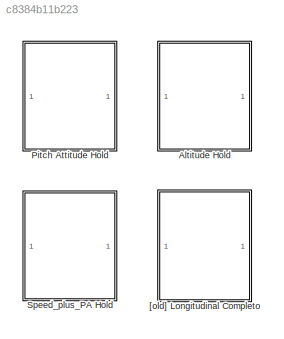
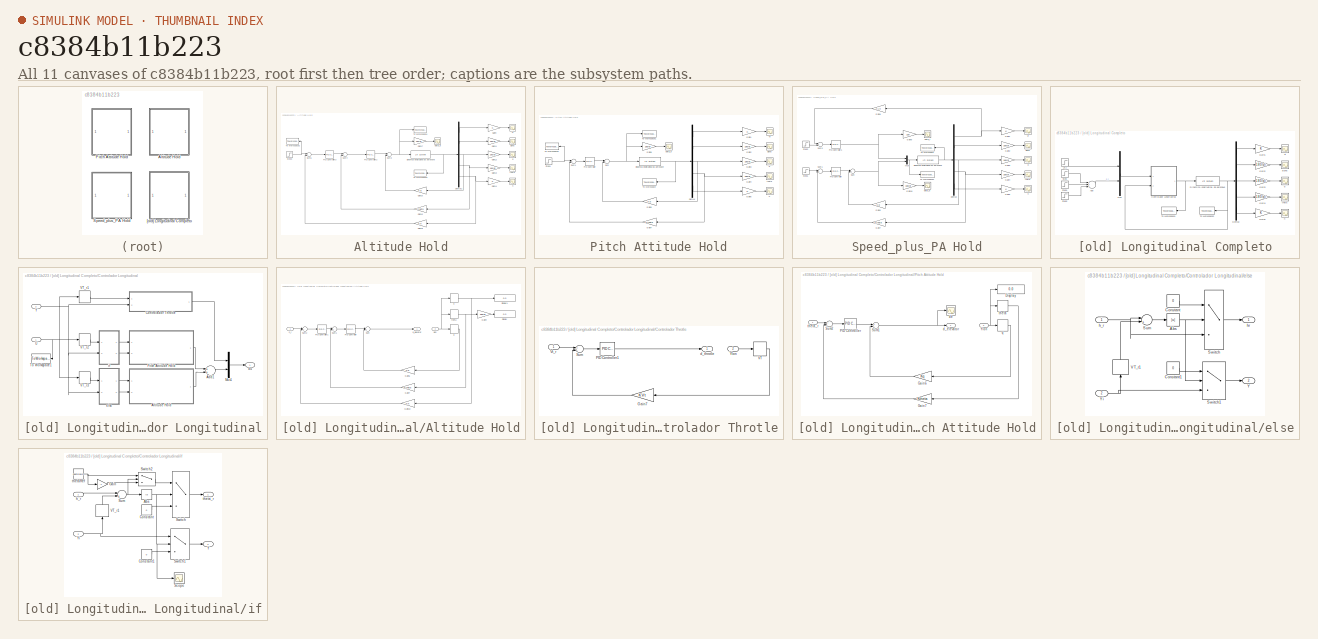
[diagram: thumbnail index - all 11 canvases of the model, root first then tree order]
MODEL slx_c8384b11b223
KIND model
CONFIG AbsTol = auto
CONFIG FixedStep = 0.01
CONFIG MaxStep = auto
CONFIG MinStep = auto
CONFIG RelTol = 1e-3
CONFIG SampleTimeConstraint = Unconstrained
CONFIG Solver = ode4
CONFIG SolverMode = Auto
CONFIG SolverName = ode4
CONFIG StartTime = 0.0
CONFIG StopTime = 60
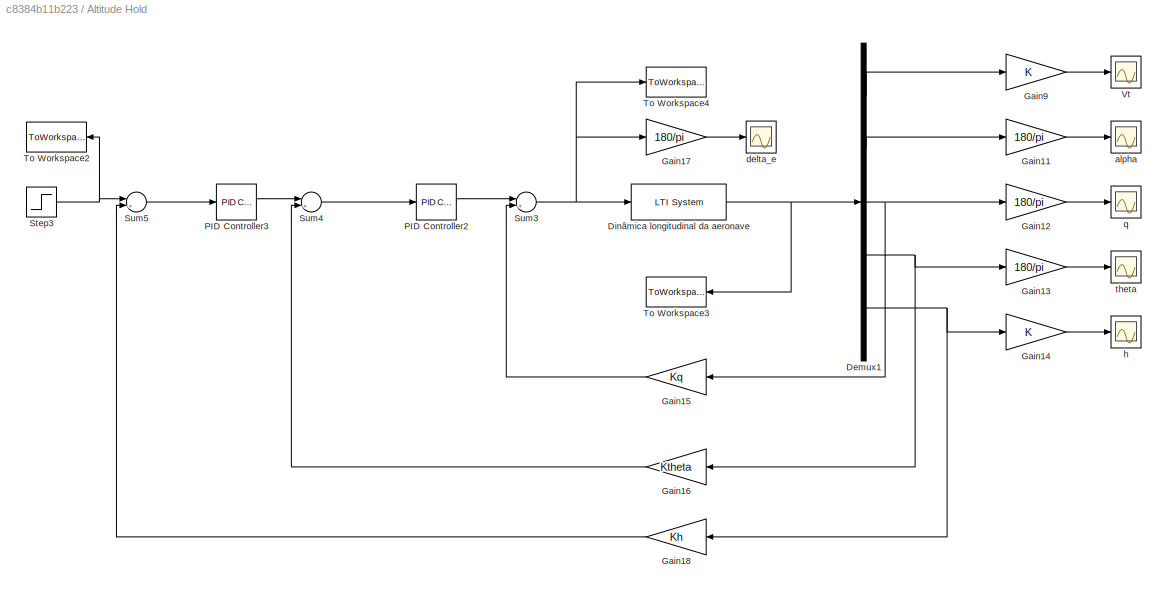
BLOCK [SubSystem] Altitude Hold
  Commented = on
  Ports = []
  RequestExecContextInheritance = off
  Variant = off
BLOCK [Demux] Altitude Hold/Demux1
  DisplayOption = bar
  Outputs = 5
  Ports = [1, 5]
BLOCK [Reference] Altitude Hold/Dinâmica longitudinal da aeronave  REF=cstblocks/LTI System
  Ports = [1, 1]
  SourceBlock = cstblocks/LTI System
  SourceType = LTI Block
BLOCK [Gain] Altitude Hold/Gain11
  Gain = 180/pi
  OutDataTypeStr = Inherit: Inherit via internal rule
  ParamDataTypeStr = Inherit: Inherit via internal rule
  SaturateOnIntegerOverflow = off
BLOCK [Gain] Altitude Hold/Gain12
  Gain = 180/pi
  OutDataTypeStr = Inherit: Inherit via internal rule
  ParamDataTypeStr = Inherit: Inherit via internal rule
  SaturateOnIntegerOverflow = off
BLOCK [Gain] Altitude Hold/Gain13
  Gain = 180/pi
  OutDataTypeStr = Inherit: Inherit via internal rule
  ParamDataTypeStr = Inherit: Inherit via internal rule
  SaturateOnIntegerOverflow = off
BLOCK [Gain] Altitude Hold/Gain14
  OutDataTypeStr = Inherit: Inherit via internal rule
  ParamDataTypeStr = Inherit: Inherit via internal rule
  SaturateOnIntegerOverflow = off
BLOCK [Gain] Altitude Hold/Gain15
  Gain = Kq
  OutDataTypeStr = Inherit: Inherit via internal rule
  ParamDataTypeStr = Inherit: Inherit via internal rule
  SaturateOnIntegerOverflow = off
BLOCK [Gain] Altitude Hold/Gain16
  Gain = Ktheta
  OutDataTypeStr = Inherit: Inherit via internal rule
  ParamDataTypeStr = Inherit: Inherit via internal rule
  SaturateOnIntegerOverflow = off
BLOCK [Gain] Altitude Hold/Gain17
  Gain = 180/pi
  OutDataTypeStr = Inherit: Inherit via internal rule
  ParamDataTypeStr = Inherit: Inherit via internal rule
  SaturateOnIntegerOverflow = off
BLOCK [Gain] Altitude Hold/Gain18
  Gain = Kh
  OutDataTypeStr = Inherit: Inherit via internal rule
  ParamDataTypeStr = Inherit: Inherit via internal rule
  SaturateOnIntegerOverflow = off
BLOCK [Gain] Altitude Hold/Gain9
  OutDataTypeStr = Inherit: Inherit via internal rule
  ParamDataTypeStr = Inherit: Inherit via internal rule
  SaturateOnIntegerOverflow = off
BLOCK [Reference] Altitude Hold/PID Controller2  REF=simulink/Continuous/PID Controller
  Ports = [1, 1]
  SourceBlock = simulink/Continuous/PID Controller
  SourceType = PID 1dof
BLOCK [Reference] Altitude Hold/PID Controller3  REF=simulink/Continuous/PID Controller
  Ports = [1, 1]
  SourceBlock = simulink/Continuous/PID Controller
  SourceType = PID 1dof
BLOCK [Step] Altitude Hold/Step3
  After = 5
  SampleTime = 0
  Time = 20
BLOCK [Sum] Altitude Hold/Sum3
  InputSameDT = off
  Inputs = |+-
  OutDataTypeStr = Inherit: Inherit via internal rule
  Ports = [2, 1]
  SaturateOnIntegerOverflow = off
BLOCK [Sum] Altitude Hold/Sum4
  InputSameDT = off
  Inputs = |+-
  OutDataTypeStr = Inherit: Inherit via internal rule
  Ports = [2, 1]
  SaturateOnIntegerOverflow = off
BLOCK [Sum] Altitude Hold/Sum5
  InputSameDT = off
  Inputs = |+-
  OutDataTypeStr = Inherit: Inherit via internal rule
  Ports = [2, 1]
  SaturateOnIntegerOverflow = off
BLOCK [ToWorkspace] Altitude Hold/To Workspace2
  MaxDataPoints = inf
  Ports = [1]
  SampleTime = -1
  SaveFormat = Timeseries
  VariableName = step
BLOCK [ToWorkspace] Altitude Hold/To Workspace3
  MaxDataPoints = inf
  Ports = [1]
  SampleTime = -1
  SaveFormat = Timeseries
  VariableName = Y
BLOCK [ToWorkspace] Altitude Hold/To Workspace4
  MaxDataPoints = inf
  Ports = [1]
  SampleTime = -1
  SaveFormat = Timeseries
  VariableName = U
BLOCK [Scope] Altitude Hold/Vt
  Ports = [1]
  ScopeSpecificationString = Simulink.scopes.TimeScopeBlockCfg('CurrentConfiguration', extmgr.ConfigurationSet(extmgr.Configuration('Core','General UI',true),extmgr.Configuration('Core','Source UI',true),extmgr.Configuration('Sources','WiredSimulink',true,'DataLoggingVariableName','ScopeData1','DataLoggingSaveFormat','StructureWithTime','DataLoggingLimitDataPoints',true,'DataLoggingDecimation','1','DataLoggingDecimateData',tr...<+1750ch>
BLOCK [Scope] Altitude Hold/alpha
  Ports = [1]
  ScopeSpecificationString = Simulink.scopes.TimeScopeBlockCfg('CurrentConfiguration', extmgr.ConfigurationSet(extmgr.Configuration('Core','General UI',true),extmgr.Configuration('Core','Source UI',true),extmgr.Configuration('Sources','WiredSimulink',true,'DataLoggingVariableName','ScopeData2','DataLoggingSaveFormat','StructureWithTime','DataLoggingLimitDataPoints',true,'DataLoggingDecimation','1','DataLoggingDecimateData',tr...<+1702ch>
BLOCK [Scope] Altitude Hold/delta_e
  Ports = [1]
  ScopeSpecificationString = Simulink.scopes.TimeScopeBlockCfg('CurrentConfiguration', extmgr.ConfigurationSet(extmgr.Configuration('Core','General UI',true),extmgr.Configuration('Core','Source UI',true),extmgr.Configuration('Sources','WiredSimulink',true,'DataLoggingSaveFormat','StructureWithTime','DataLoggingLimitDataPoints',true,'DataLoggingDecimation','1','DataLoggingDecimateData',true,'DataLoggingVariableName','ScopeData...<+1753ch>
BLOCK [Scope] Altitude Hold/h
  Ports = [1]
  ScopeSpecificationString = Simulink.scopes.TimeScopeBlockCfg('CurrentConfiguration', extmgr.ConfigurationSet(extmgr.Configuration('Core','General UI',true,'DisplayFullSourceName',true),extmgr.Configuration('Core','Source UI',true),extmgr.Configuration('Sources','WiredSimulink',true,'DataLoggingVariableName','ScopeData4','DataLoggingSaveFormat','StructureWithTime','DataLoggingDecimation','1','DataLoggingDecimateData',true),e...<+1745ch>
BLOCK [Scope] Altitude Hold/q
  Ports = [1]
  ScopeSpecificationString = Simulink.scopes.TimeScopeBlockCfg('CurrentConfiguration', extmgr.ConfigurationSet(extmgr.Configuration('Core','General UI',true),extmgr.Configuration('Core','Source UI',true),extmgr.Configuration('Sources','WiredSimulink',true,'DataLoggingVariableName','ScopeData5','DataLoggingSaveFormat','StructureWithTime','DataLoggingLimitDataPoints',true,'DataLoggingDecimation','1','DataLoggingDecimateData',tr...<+1708ch>
BLOCK [Scope] Altitude Hold/theta
  Ports = [1]
  ScopeSpecificationString = Simulink.scopes.TimeScopeBlockCfg('CurrentConfiguration', extmgr.ConfigurationSet(extmgr.Configuration('Core','General UI',true,'DisplayFullSourceName',true),extmgr.Configuration('Core','Source UI',true),extmgr.Configuration('Sources','WiredSimulink',true,'DataLoggingVariableName','ScopeData6','DataLoggingSaveFormat','StructureWithTime','DataLoggingLimitDataPoints',true,'DataLoggingDecimation','1'...<+1784ch>
BLOCK [SubSystem] Pitch Attitude Hold
  Ports = []
  RequestExecContextInheritance = off
  Variant = off
BLOCK [Demux] Pitch Attitude Hold/Demux
  DisplayOption = bar
  Outputs = 5
  Ports = [1, 5]
BLOCK [Reference] Pitch Attitude Hold/Dinâmica longitudinal da aeronave  REF=cstblocks/LTI System
  Ports = [1, 1]
  SourceBlock = cstblocks/LTI System
  SourceType = LTI Block
BLOCK [Gain] Pitch Attitude Hold/Gain1
  OutDataTypeStr = Inherit: Inherit via internal rule
  ParamDataTypeStr = Inherit: Inherit via internal rule
  SaturateOnIntegerOverflow = off
BLOCK [Gain] Pitch Attitude Hold/Gain2
  Gain = 180/pi
  OutDataTypeStr = Inherit: Inherit via internal rule
  ParamDataTypeStr = Inherit: Inherit via internal rule
  SaturateOnIntegerOverflow = off
BLOCK [Gain] Pitch Attitude Hold/Gain3
  Gain = 180/pi
  OutDataTypeStr = Inherit: Inherit via internal rule
  ParamDataTypeStr = Inherit: Inherit via internal rule
  SaturateOnIntegerOverflow = off
BLOCK [Gain] Pitch Attitude Hold/Gain4
  Gain = 180/pi
  OutDataTypeStr = Inherit: Inherit via internal rule
  ParamDataTypeStr = Inherit: Inherit via internal rule
  SaturateOnIntegerOverflow = off
BLOCK [Gain] Pitch Attitude Hold/Gain5
  OutDataTypeStr = Inherit: Inherit via internal rule
  ParamDataTypeStr = Inherit: Inherit via internal rule
  SaturateOnIntegerOverflow = off
BLOCK [Gain] Pitch Attitude Hold/Gain6
  Gain = Kq
  OutDataTypeStr = Inherit: Inherit via internal rule
  ParamDataTypeStr = Inherit: Inherit via internal rule
  SaturateOnIntegerOverflow = off
BLOCK [Gain] Pitch Attitude Hold/Gain7
  Gain = Ktheta
  OutDataTypeStr = Inherit: Inherit via internal rule
  ParamDataTypeStr = Inherit: Inherit via internal rule
  SaturateOnIntegerOverflow = off
BLOCK [Gain] Pitch Attitude Hold/Gain8
  Gain = 180/pi
  OutDataTypeStr = Inherit: Inherit via internal rule
  ParamDataTypeStr = Inherit: Inherit via internal rule
  SaturateOnIntegerOverflow = off
BLOCK [Reference] Pitch Attitude Hold/PID Controller  REF=simulink/Continuous/PID Controller
  Ports = [1, 1]
  SourceBlock = simulink/Continuous/PID Controller
  SourceType = PID 1dof
BLOCK [Step] Pitch Attitude Hold/Step1
  After = degtorad(5)
  SampleTime = 0
  Time = 20
BLOCK [Sum] Pitch Attitude Hold/Sum
  InputSameDT = off
  Inputs = |+-
  OutDataTypeStr = Inherit: Inherit via internal rule
  Ports = [2, 1]
  SaturateOnIntegerOverflow = off
BLOCK [Sum] Pitch Attitude Hold/Sum1
  InputSameDT = off
  Inputs = |+-
  OutDataTypeStr = Inherit: Inherit via internal rule
  Ports = [2, 1]
  SaturateOnIntegerOverflow = off
BLOCK [ToWorkspace] Pitch Attitude Hold/To Workspace
  MaxDataPoints = inf
  Ports = [1]
  SampleTime = -1
  SaveFormat = Timeseries
  VariableName = Y
BLOCK [ToWorkspace] Pitch Attitude Hold/To Workspace1
  MaxDataPoints = inf
  Ports = [1]
  SampleTime = -1
  SaveFormat = Timeseries
  VariableName = U
BLOCK [ToWorkspace] Pitch Attitude Hold/To Workspace2
  MaxDataPoints = inf
  Ports = [1]
  SampleTime = -1
  SaveFormat = Timeseries
  VariableName = step
BLOCK [Scope] Pitch Attitude Hold/Vt
  Ports = [1]
  ScopeSpecificationString = Simulink.scopes.TimeScopeBlockCfg('CurrentConfiguration', extmgr.ConfigurationSet(extmgr.Configuration('Core','General UI',true),extmgr.Configuration('Core','Source UI',true),extmgr.Configuration('Sources','WiredSimulink',true,'DataLoggingVariableName','ScopeData1','DataLoggingSaveFormat','StructureWithTime','DataLoggingLimitDataPoints',true,'DataLoggingDecimation','1','DataLoggingDecimateData',tr...<+1754ch>
BLOCK [Scope] Pitch Attitude Hold/alpha
  Ports = [1]
  ScopeSpecificationString = Simulink.scopes.TimeScopeBlockCfg('CurrentConfiguration', extmgr.ConfigurationSet(extmgr.Configuration('Core','General UI',true),extmgr.Configuration('Core','Source UI',true),extmgr.Configuration('Sources','WiredSimulink',true,'DataLoggingVariableName','ScopeData2','DataLoggingSaveFormat','StructureWithTime','DataLoggingLimitDataPoints',true,'DataLoggingDecimation','1','DataLoggingDecimateData',tr...<+1701ch>
BLOCK [Scope] Pitch Attitude Hold/delta_e
  Ports = [1]
  ScopeSpecificationString = Simulink.scopes.TimeScopeBlockCfg('CurrentConfiguration', extmgr.ConfigurationSet(extmgr.Configuration('Core','General UI',true),extmgr.Configuration('Core','Source UI',true),extmgr.Configuration('Sources','WiredSimulink',true,'DataLoggingSaveFormat','StructureWithTime','DataLoggingLimitDataPoints',true,'DataLoggingDecimation','1','DataLoggingDecimateData',true),extmgr.Configuration('Visuals','Tim...<+1705ch>
BLOCK [Scope] Pitch Attitude Hold/h
  Ports = [1]
  ScopeSpecificationString = Simulink.scopes.TimeScopeBlockCfg('CurrentConfiguration', extmgr.ConfigurationSet(extmgr.Configuration('Core','General UI',true),extmgr.Configuration('Core','Source UI',true),extmgr.Configuration('Sources','WiredSimulink',true,'DataLoggingVariableName','ScopeData5','DataLoggingSaveFormat','StructureWithTime','DataLoggingLimitDataPoints',true,'DataLoggingDecimation','1','DataLoggingDecimateData',tr...<+1681ch>
BLOCK [Scope] Pitch Attitude Hold/q
  Ports = [1]
  ScopeSpecificationString = Simulink.scopes.TimeScopeBlockCfg('CurrentConfiguration', extmgr.ConfigurationSet(extmgr.Configuration('Core','General UI',true),extmgr.Configuration('Core','Source UI',true),extmgr.Configuration('Sources','WiredSimulink',true,'DataLoggingVariableName','ScopeData3','DataLoggingSaveFormat','StructureWithTime','DataLoggingLimitDataPoints',true,'DataLoggingDecimation','1','DataLoggingDecimateData',tr...<+1705ch>
BLOCK [Scope] Pitch Attitude Hold/theta
  Ports = [1]
  ScopeSpecificationString = Simulink.scopes.TimeScopeBlockCfg('CurrentConfiguration', extmgr.ConfigurationSet(extmgr.Configuration('Core','General UI',true),extmgr.Configuration('Core','Source UI',true),extmgr.Configuration('Sources','WiredSimulink',true,'DataLoggingVariableName','ScopeData4','DataLoggingSaveFormat','StructureWithTime','DataLoggingLimitDataPoints',true,'DataLoggingDecimation','1','DataLoggingDecimateData',tr...<+1767ch>
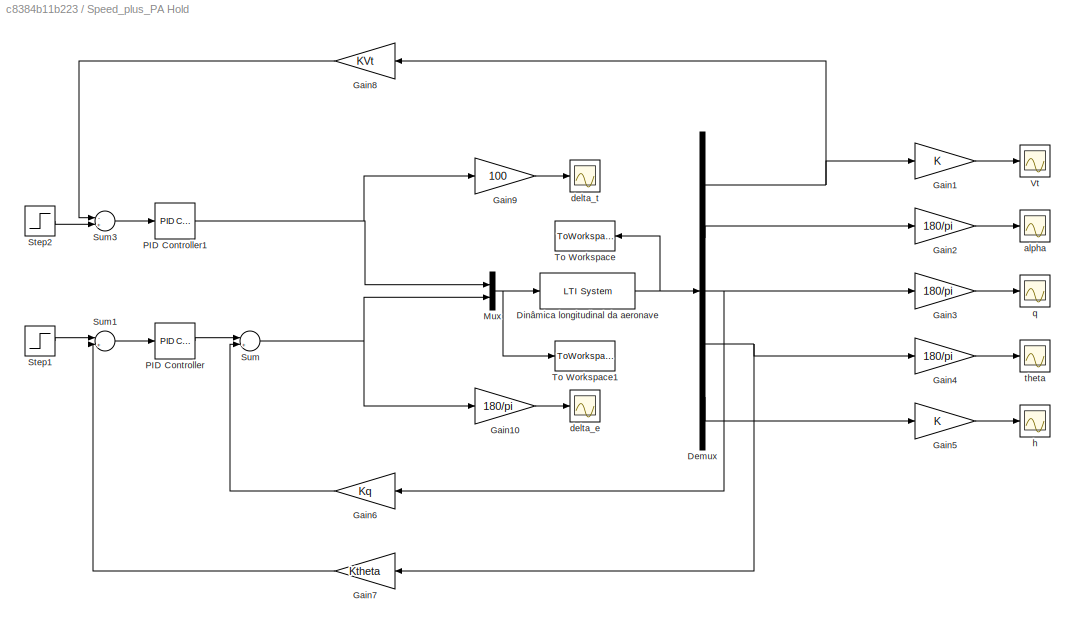
BLOCK [SubSystem] Speed_plus_PA Hold
  Commented = on
  Ports = []
  RequestExecContextInheritance = off
  Variant = off
BLOCK [Demux] Speed_plus_PA Hold/Demux
  DisplayOption = bar
  Outputs = 5
  Ports = [1, 5]
BLOCK [Reference] Speed_plus_PA Hold/Dinâmica longitudinal da aeronave  REF=cstblocks/LTI System
  Ports = [1, 1]
  SourceBlock = cstblocks/LTI System
  SourceType = LTI Block
BLOCK [Gain] Speed_plus_PA Hold/Gain1
  OutDataTypeStr = Inherit: Inherit via internal rule
  ParamDataTypeStr = Inherit: Inherit via internal rule
  SaturateOnIntegerOverflow = off
BLOCK [Gain] Speed_plus_PA Hold/Gain10
  Gain = 180/pi
  OutDataTypeStr = Inherit: Inherit via internal rule
  ParamDataTypeStr = Inherit: Inherit via internal rule
  SaturateOnIntegerOverflow = off
BLOCK [Gain] Speed_plus_PA Hold/Gain2
  Gain = 180/pi
  OutDataTypeStr = Inherit: Inherit via internal rule
  ParamDataTypeStr = Inherit: Inherit via internal rule
  SaturateOnIntegerOverflow = off
BLOCK [Gain] Speed_plus_PA Hold/Gain3
  Gain = 180/pi
  OutDataTypeStr = Inherit: Inherit via internal rule
  ParamDataTypeStr = Inherit: Inherit via internal rule
  SaturateOnIntegerOverflow = off
BLOCK [Gain] Speed_plus_PA Hold/Gain4
  Gain = 180/pi
  OutDataTypeStr = Inherit: Inherit via internal rule
  ParamDataTypeStr = Inherit: Inherit via internal rule
  SaturateOnIntegerOverflow = off
BLOCK [Gain] Speed_plus_PA Hold/Gain5
  OutDataTypeStr = Inherit: Inherit via internal rule
  ParamDataTypeStr = Inherit: Inherit via internal rule
  SaturateOnIntegerOverflow = off
BLOCK [Gain] Speed_plus_PA Hold/Gain6
  Gain = Kq
  OutDataTypeStr = Inherit: Inherit via internal rule
  ParamDataTypeStr = Inherit: Inherit via internal rule
  SaturateOnIntegerOverflow = off
BLOCK [Gain] Speed_plus_PA Hold/Gain7
  Gain = Ktheta
  OutDataTypeStr = Inherit: Inherit via internal rule
  ParamDataTypeStr = Inherit: Inherit via internal rule
  SaturateOnIntegerOverflow = off
BLOCK [Gain] Speed_plus_PA Hold/Gain8
  Gain = KVt
  OutDataTypeStr = Inherit: Inherit via internal rule
  ParamDataTypeStr = Inherit: Inherit via internal rule
  SaturateOnIntegerOverflow = off
BLOCK [Gain] Speed_plus_PA Hold/Gain9
  Gain = 100
  OutDataTypeStr = Inherit: Inherit via internal rule
  ParamDataTypeStr = Inherit: Inherit via internal rule
  SaturateOnIntegerOverflow = off
BLOCK [Mux] Speed_plus_PA Hold/Mux
  DisplayOption = bar
  Inputs = 2
  Ports = [2, 1]
BLOCK [Reference] Speed_plus_PA Hold/PID Controller  REF=simulink/Continuous/PID Controller
  Ports = [1, 1]
  SourceBlock = simulink/Continuous/PID Controller
  SourceType = PID 1dof
BLOCK [Reference] Speed_plus_PA Hold/PID Controller1  REF=simulink/Continuous/PID Controller
  Ports = [1, 1]
  SourceBlock = simulink/Continuous/PID Controller
  SourceType = PID 1dof
BLOCK [Step] Speed_plus_PA Hold/Step1
  After = degtorad(5)
  SampleTime = 0
  Time = 20
BLOCK [Step] Speed_plus_PA Hold/Step2
  After = 0
  SampleTime = 0
  Time = 20
BLOCK [Sum] Speed_plus_PA Hold/Sum
  InputSameDT = off
  Inputs = |+-
  OutDataTypeStr = Inherit: Inherit via internal rule
  Ports = [2, 1]
  SaturateOnIntegerOverflow = off
BLOCK [Sum] Speed_plus_PA Hold/Sum1
  InputSameDT = off
  Inputs = |+-
  OutDataTypeStr = Inherit: Inherit via internal rule
  Ports = [2, 1]
  SaturateOnIntegerOverflow = off
BLOCK [Sum] Speed_plus_PA Hold/Sum3
  InputSameDT = off
  Inputs = -+|
  OutDataTypeStr = Inherit: Inherit via internal rule
  Ports = [2, 1]
  SaturateOnIntegerOverflow = off
BLOCK [ToWorkspace] Speed_plus_PA Hold/To Workspace
  MaxDataPoints = inf
  Ports = [1]
  SampleTime = -1
  SaveFormat = Timeseries
  VariableName = Y
BLOCK [ToWorkspace] Speed_plus_PA Hold/To Workspace1
  MaxDataPoints = inf
  Ports = [1]
  SampleTime = -1
  SaveFormat = Timeseries
  VariableName = U
BLOCK [Scope] Speed_plus_PA Hold/Vt
  Ports = [1]
  ScopeSpecificationString = Simulink.scopes.TimeScopeBlockCfg('CurrentConfiguration', extmgr.ConfigurationSet(extmgr.Configuration('Core','General UI',true),extmgr.Configuration('Core','Source UI',true),extmgr.Configuration('Sources','WiredSimulink',true,'DataLoggingVariableName','ScopeData1','DataLoggingSaveFormat','StructureWithTime','DataLoggingLimitDataPoints',true,'DataLoggingDecimation','1','DataLoggingDecimateData',tr...<+1750ch>
BLOCK [Scope] Speed_plus_PA Hold/alpha
  Ports = [1]
  ScopeSpecificationString = Simulink.scopes.TimeScopeBlockCfg('CurrentConfiguration', extmgr.ConfigurationSet(extmgr.Configuration('Core','General UI',true),extmgr.Configuration('Core','Source UI',true),extmgr.Configuration('Sources','WiredSimulink',true,'DataLoggingVariableName','ScopeData2','DataLoggingSaveFormat','StructureWithTime','DataLoggingLimitDataPoints',true,'DataLoggingDecimation','1','DataLoggingDecimateData',tr...<+1674ch>
BLOCK [Scope] Speed_plus_PA Hold/delta_e
  Ports = [1]
  ScopeSpecificationString = Simulink.scopes.TimeScopeBlockCfg('CurrentConfiguration', extmgr.ConfigurationSet(extmgr.Configuration('Core','General UI',true),extmgr.Configuration('Core','Source UI',true),extmgr.Configuration('Sources','WiredSimulink',true,'DataLoggingVariableName','ScopeData2'),extmgr.Configuration('Visuals','Time Domain',true,'SerializedDisplays',{struct('MinYLimReal','-8.80311','MaxYLimReal','1.03716','YLab...<+1365ch>
BLOCK [Scope] Speed_plus_PA Hold/delta_t
  Ports = [1]
  ScopeSpecificationString = Simulink.scopes.TimeScopeBlockCfg('CurrentConfiguration', extmgr.ConfigurationSet(extmgr.Configuration('Core','General UI',true),extmgr.Configuration('Core','Source UI',true),extmgr.Configuration('Sources','WiredSimulink',true,'DataLoggingVariableName','ScopeData1'),extmgr.Configuration('Visuals','Time Domain',true,'SerializedDisplays',{struct('MinYLimReal','-1.85741','MaxYLimReal','16.71671','YLa...<+1394ch>
BLOCK [Scope] Speed_plus_PA Hold/h
  Ports = [1]
  ScopeSpecificationString = Simulink.scopes.TimeScopeBlockCfg('CurrentConfiguration', extmgr.ConfigurationSet(extmgr.Configuration('Core','General UI',true),extmgr.Configuration('Core','Source UI',true),extmgr.Configuration('Sources','WiredSimulink',true,'DataLoggingVariableName','ScopeData5','DataLoggingSaveFormat','StructureWithTime','DataLoggingLimitDataPoints',true,'DataLoggingDecimation','1','DataLoggingDecimateData',tr...<+1686ch>
BLOCK [Scope] Speed_plus_PA Hold/q
  Ports = [1]
  ScopeSpecificationString = Simulink.scopes.TimeScopeBlockCfg('CurrentConfiguration', extmgr.ConfigurationSet(extmgr.Configuration('Core','General UI',true),extmgr.Configuration('Core','Source UI',true),extmgr.Configuration('Sources','WiredSimulink',true,'DataLoggingVariableName','ScopeData3','DataLoggingSaveFormat','StructureWithTime','DataLoggingLimitDataPoints',true,'DataLoggingDecimation','1','DataLoggingDecimateData',tr...<+1680ch>
BLOCK [Scope] Speed_plus_PA Hold/theta
  Ports = [1]
  ScopeSpecificationString = Simulink.scopes.TimeScopeBlockCfg('CurrentConfiguration', extmgr.ConfigurationSet(extmgr.Configuration('Core','General UI',true),extmgr.Configuration('Core','Source UI',true),extmgr.Configuration('Sources','WiredSimulink',true,'DataLoggingVariableName','ScopeData4','DataLoggingSaveFormat','StructureWithTime','DataLoggingLimitDataPoints',true,'DataLoggingDecimation','1','DataLoggingDecimateData',tr...<+1722ch>
BLOCK [SubSystem] [old] Longitudinal Completo
  Commented = on
  Ports = []
  RequestExecContextInheritance = off
  Variant = off
BLOCK [Sum] [old] Longitudinal Completo/Add
  InputSameDT = off
  Inputs = +++
  OutDataTypeStr = Inherit: Inherit via internal rule
  Ports = [3, 1]
  SaturateOnIntegerOverflow = off
BLOCK [SubSystem] [old] Longitudinal Completo/Controlador Longitudinal
  Ports = [2, 1]
  RequestExecContextInheritance = off
  Variant = off
BLOCK [Sum] [old] Longitudinal Completo/Controlador Longitudinal/Add1
  InputSameDT = off
  OutDataTypeStr = Inherit: Inherit via internal rule
  Ports = [2, 1]
  SaturateOnIntegerOverflow = off
BLOCK [SubSystem] [old] Longitudinal Completo/Controlador Longitudinal/Altitude Hold
  Ports = [2, 1]
  RequestExecContextInheritance = off
  Variant = off
BLOCK [Display] [old] Longitudinal Completo/Controlador Longitudinal/Altitude Hold/Display
  Decimation = 1
  Ports = [1]
BLOCK [Display] [old] Longitudinal Completo/Controlador Longitudinal/Altitude Hold/Display1
  Decimation = 1
  Ports = [1]
BLOCK [Gain] [old] Longitudinal Completo/Controlador Longitudinal/Altitude Hold/Gain10
  Gain = Kh
  OutDataTypeStr = Inherit: Inherit via internal rule
  ParamDataTypeStr = Inherit: Inherit via internal rule
  SaturateOnIntegerOverflow = off
BLOCK [Gain] [old] Longitudinal Completo/Controlador Longitudinal/Altitude Hold/Gain4
  Gain = 180/pi
  OutDataTypeStr = Inherit: Inherit via internal rule
  ParamDataTypeStr = Inherit: Inherit via internal rule
  SaturateOnIntegerOverflow = off
BLOCK [Gain] [old] Longitudinal Completo/Controlador Longitudinal/Altitude Hold/Gain6
  Gain = Kq
  OutDataTypeStr = Inherit: Inherit via internal rule
  ParamDataTypeStr = Inherit: Inherit via internal rule
  SaturateOnIntegerOverflow = off
BLOCK [Gain] [old] Longitudinal Completo/Controlador Longitudinal/Altitude Hold/Gain7
  Gain = Ktheta
  OutDataTypeStr = Inherit: Inherit via internal rule
  ParamDataTypeStr = Inherit: Inherit via internal rule
  SaturateOnIntegerOverflow = off
BLOCK [Reference] [old] Longitudinal Completo/Controlador Longitudinal/Altitude Hold/PID Controller  REF=simulink/Continuous/PID Controller
  Ports = [1, 1]
  SourceBlock = simulink/Continuous/PID Controller
  SourceType = PID 1dof
BLOCK [Reference] [old] Longitudinal Completo/Controlador Longitudinal/Altitude Hold/PID Controller1  REF=simulink/Continuous/PID Controller
  Ports = [1, 1]
  SourceBlock = simulink/Continuous/PID Controller
  SourceType = PID 1dof
BLOCK [Sum] [old] Longitudinal Completo/Controlador Longitudinal/Altitude Hold/Sum
  InputSameDT = off
  Inputs = |+-
  OutDataTypeStr = Inherit: Inherit via internal rule
  Ports = [2, 1]
  SaturateOnIntegerOverflow = off
BLOCK [Sum] [old] Longitudinal Completo/Controlador Longitudinal/Altitude Hold/Sum1
  InputSameDT = off
  Inputs = |+-
  OutDataTypeStr = Inherit: Inherit via internal rule
  Ports = [2, 1]
  SaturateOnIntegerOverflow = off
BLOCK [Sum] [old] Longitudinal Completo/Controlador Longitudinal/Altitude Hold/Sum2
  InputSameDT = off
  Inputs = |+-
  OutDataTypeStr = Inherit: Inherit via internal rule
  Ports = [2, 1]
  SaturateOnIntegerOverflow = off
BLOCK [Inport] [old] Longitudinal Completo/Controlador Longitudinal/Altitude Hold/Ylon
  IconDisplay = Port number
  Port = 2
BLOCK [Outport] [old] Longitudinal Completo/Controlador Longitudinal/Altitude Hold/d_elevator
  IconDisplay = Port number
BLOCK [Selector] [old] Longitudinal Completo/Controlador Longitudinal/Altitude Hold/h
  IndexOptions = Index vector (dialog)
  Indices = [5]
  InputPortWidth = 5
  OutputSizes = 1
  Ports = [1, 1]
BLOCK [Inport] [old] Longitudinal Completo/Controlador Longitudinal/Altitude Hold/h_r
  IconDisplay = Port number
BLOCK [Selector] [old] Longitudinal Completo/Controlador Longitudinal/Altitude Hold/q
  IndexOptions = Index vector (dialog)
  Indices = [3]
  InputPortWidth = 5
  OutputSizes = 1
  Ports = [1, 1]
BLOCK [Selector] [old] Longitudinal Completo/Controlador Longitudinal/Altitude Hold/theta
  IndexOptions = Index vector (dialog)
  Indices = [4]
  InputPortWidth = 5
  OutputSizes = 1
  Ports = [1, 1]
BLOCK [SubSystem] [old] Longitudinal Completo/Controlador Longitudinal/Controlador Throtle
  Ports = [2, 1]
  RequestExecContextInheritance = off
  Variant = off
BLOCK [Gain] [old] Longitudinal Completo/Controlador Longitudinal/Controlador Throtle/Gain7
  Gain = KVt
  OutDataTypeStr = Inherit: Inherit via internal rule
  ParamDataTypeStr = Inherit: Inherit via internal rule
  SaturateOnIntegerOverflow = off
BLOCK [Reference] [old] Longitudinal Completo/Controlador Longitudinal/Controlador Throtle/PID Controller1  REF=simulink/Continuous/PID Controller
  Ports = [1, 1]
  SourceBlock = simulink/Continuous/PID Controller
  SourceType = PID 1dof
BLOCK [Sum] [old] Longitudinal Completo/Controlador Longitudinal/Controlador Throtle/Sum
  InputSameDT = off
  Inputs = +-
  OutDataTypeStr = Inherit: Inherit via internal rule
  Ports = [2, 1]
  SaturateOnIntegerOverflow = off
BLOCK [Selector] [old] Longitudinal Completo/Controlador Longitudinal/Controlador Throtle/VT
  IndexOptions = Index vector (dialog)
  Indices = 1
  InputPortWidth = 5
  OutputSizes = 1
  Ports = [1, 1]
BLOCK [Inport] [old] Longitudinal Completo/Controlador Longitudinal/Controlador Throtle/Vt_r
  IconDisplay = Port number
BLOCK [Inport] [old] Longitudinal Completo/Controlador Longitudinal/Controlador Throtle/Ylon
  IconDisplay = Port number
  Port = 2
BLOCK [Outport] [old] Longitudinal Completo/Controlador Longitudinal/Controlador Throtle/d_throtle
  IconDisplay = Port number
BLOCK [Mux] [old] Longitudinal Completo/Controlador Longitudinal/Mux1
  DisplayOption = bar
  Inputs = 2
  Ports = [2, 1]
BLOCK [SubSystem] [old] Longitudinal Completo/Controlador Longitudinal/Pitch Attitude Hold
  Ports = [2, 1]
  RequestExecContextInheritance = off
  Variant = off
BLOCK [Display] [old] Longitudinal Completo/Controlador Longitudinal/Pitch Attitude Hold/Display
  Decimation = 1
  Ports = [1]
BLOCK [Gain] [old] Longitudinal Completo/Controlador Longitudinal/Pitch Attitude Hold/Gain6
  Gain = Kq
  OutDataTypeStr = Inherit: Inherit via internal rule
  ParamDataTypeStr = Inherit: Inherit via internal rule
  SaturateOnIntegerOverflow = off
BLOCK [Gain] [old] Longitudinal Completo/Controlador Longitudinal/Pitch Attitude Hold/Gain7
  Gain = Ktheta
  OutDataTypeStr = Inherit: Inherit via internal rule
  ParamDataTypeStr = Inherit: Inherit via internal rule
  SaturateOnIntegerOverflow = off
BLOCK [Reference] [old] Longitudinal Completo/Controlador Longitudinal/Pitch Attitude Hold/PID Controller  REF=simulink/Continuous/PID Controller
  Ports = [1, 1]
  SourceBlock = simulink/Continuous/PID Controller
  SourceType = PID 1dof
BLOCK [Sum] [old] Longitudinal Completo/Controlador Longitudinal/Pitch Attitude Hold/Sum1
  InputSameDT = off
  Inputs = +-
  OutDataTypeStr = Inherit: Inherit via internal rule
  Ports = [2, 1]
  SaturateOnIntegerOverflow = off
BLOCK [Sum] [old] Longitudinal Completo/Controlador Longitudinal/Pitch Attitude Hold/Sum2
  InputSameDT = off
  Inputs = +-
  OutDataTypeStr = Inherit: Inherit via internal rule
  Ports = [2, 1]
  SaturateOnIntegerOverflow = off
BLOCK [Inport] [old] Longitudinal Completo/Controlador Longitudinal/Pitch Attitude Hold/Ylon
  IconDisplay = Port number
  Port = 2
BLOCK [Outport] [old] Longitudinal Completo/Controlador Longitudinal/Pitch Attitude Hold/d_elevator
  IconDisplay = Port number
BLOCK [Scope] [old] Longitudinal Completo/Controlador Longitudinal/Pitch Attitude Hold/de
  Ports = [1]
  ScopeSpecificationString = Simulink.scopes.TimeScopeBlockCfg('CurrentConfiguration', extmgr.ConfigurationSet(extmgr.Configuration('Core','General UI',true),extmgr.Configuration('Core','Source UI',true),extmgr.Configuration('Sources','WiredSimulink',true,'DataLoggingVariableName','ScopeData4'),extmgr.Configuration('Visuals','Time Domain',true,'SerializedDisplays',{struct('MinYLimReal','-1.00000','MaxYLimReal','1.00000','YLab...<+1420ch>
BLOCK [Selector] [old] Longitudinal Completo/Controlador Longitudinal/Pitch Attitude Hold/q
  IndexOptions = Index vector (dialog)
  Indices = [3]
  InputPortWidth = 5
  OutputSizes = 1
  Ports = [1, 1]
BLOCK [Selector] [old] Longitudinal Completo/Controlador Longitudinal/Pitch Attitude Hold/theta
  IndexOptions = Index vector (dialog)
  Indices = [4]
  InputPortWidth = 5
  OutputSizes = 1
  Ports = [1, 1]
BLOCK [Inport] [old] Longitudinal Completo/Controlador Longitudinal/Pitch Attitude Hold/theta_r
  IconDisplay = Port number
BLOCK [ToWorkspace] [old] Longitudinal Completo/Controlador Longitudinal/To Workspace1
  MaxDataPoints = inf
  Ports = [1]
  SampleTime = -1
  SaveFormat = Timeseries
  VariableName = step
BLOCK [Inport] [old] Longitudinal Completo/Controlador Longitudinal/U
  IconDisplay = Port number
BLOCK [Selector] [old] Longitudinal Completo/Controlador Longitudinal/VT_r1
  IndexOptions = Index vector (dialog)
  Indices = [1]
  InputPortWidth = 2
  OutputSizes = 1
  Ports = [1, 1]
BLOCK [Selector] [old] Longitudinal Completo/Controlador Longitudinal/VT_r2
  IndexOptions = Index vector (dialog)
  Indices = [2]
  InputPortWidth = 2
  OutputSizes = 1
  Ports = [1, 1]
BLOCK [Selector] [old] Longitudinal Completo/Controlador Longitudinal/VT_r3
  IndexOptions = Index vector (dialog)
  Indices = [2]
  InputPortWidth = 2
  OutputSizes = 1
  Ports = [1, 1]
BLOCK [Inport] [old] Longitudinal Completo/Controlador Longitudinal/Y
  IconDisplay = Port number
  Port = 2
BLOCK [Outport] [old] Longitudinal Completo/Controlador Longitudinal/du
  IconDisplay = Port number
BLOCK [SubSystem] [old] Longitudinal Completo/Controlador Longitudinal/else
  Ports = [2, 2]
  RequestExecContextInheritance = off
  Variant = off
BLOCK [Abs] [old] Longitudinal Completo/Controlador Longitudinal/else/Abs
  SaturateOnIntegerOverflow = off
BLOCK [Constant] [old] Longitudinal Completo/Controlador Longitudinal/else/Constant
  Value = 0
BLOCK [Constant] [old] Longitudinal Completo/Controlador Longitudinal/else/Constant1
  Value = 0
BLOCK [Sum] [old] Longitudinal Completo/Controlador Longitudinal/else/Sum
  InputSameDT = off
  Inputs = |+-
  OutDataTypeStr = Inherit: Inherit via internal rule
  Ports = [2, 1]
  SaturateOnIntegerOverflow = off
BLOCK [Switch] [old] Longitudinal Completo/Controlador Longitudinal/else/Switch
  Criteria = u2 > Threshold
  InputSameDT = off
  SaturateOnIntegerOverflow = off
  Threshold = 5
BLOCK [Switch] [old] Longitudinal Completo/Controlador Longitudinal/else/Switch1
  Criteria = u2 > Threshold
  InputSameDT = off
  SaturateOnIntegerOverflow = off
  Threshold = 5
BLOCK [Selector] [old] Longitudinal Completo/Controlador Longitudinal/else/VT_r1
  IndexOptions = Index vector (dialog)
  Indices = [5]
  InputPortWidth = 5
  OutputSizes = 1
  Ports = [1, 1]
BLOCK [Outport] [old] Longitudinal Completo/Controlador Longitudinal/else/Y
  IconDisplay = Port number
  Port = 2
BLOCK [Inport] [old] Longitudinal Completo/Controlador Longitudinal/else/Yi
  IconDisplay = Port number
  Port = 2
BLOCK [Inport] [old] Longitudinal Completo/Controlador Longitudinal/else/h_r
  IconDisplay = Port number
BLOCK [Outport] [old] Longitudinal Completo/Controlador Longitudinal/else/hr
  IconDisplay = Port number
BLOCK [SubSystem] [old] Longitudinal Completo/Controlador Longitudinal/if
  Ports = [2, 2]
  RequestExecContextInheritance = off
  Variant = off
BLOCK [Abs] [old] Longitudinal Completo/Controlador Longitudinal/if/Abs
  SaturateOnIntegerOverflow = off
BLOCK [Constant] [old] Longitudinal Completo/Controlador Longitudinal/if/Constant
  Value = 0
BLOCK [Constant] [old] Longitudinal Completo/Controlador Longitudinal/if/Constant1
  Value = 0
BLOCK [Gain] [old] Longitudinal Completo/Controlador Longitudinal/if/Gain
  Gain = -1
  OutDataTypeStr = Inherit: Inherit via internal rule
  ParamDataTypeStr = Inherit: Inherit via internal rule
  SaturateOnIntegerOverflow = off
BLOCK [Scope] [old] Longitudinal Completo/Controlador Longitudinal/if/Scope
  Ports = [1]
  ScopeSpecificationString = Simulink.scopes.TimeScopeBlockCfg('CurrentConfiguration', extmgr.ConfigurationSet(extmgr.Configuration('Core','General UI',true),extmgr.Configuration('Core','Source UI',true),extmgr.Configuration('Sources','WiredSimulink',true,'DataLoggingVariableName','ScopeData1'),extmgr.Configuration('Visuals','Time Domain',true,'SerializedDisplays',{struct('MinYLimReal','-1.00000','MaxYLimReal','1.00000','YLab...<+1415ch>
BLOCK [Sum] [old] Longitudinal Completo/Controlador Longitudinal/if/Sum
  InputSameDT = off
  Inputs = |+-
  OutDataTypeStr = Inherit: Inherit via internal rule
  Ports = [2, 1]
  SaturateOnIntegerOverflow = off
BLOCK [Switch] [old] Longitudinal Completo/Controlador Longitudinal/if/Switch
  Criteria = u2 > Threshold
  InputSameDT = off
  SaturateOnIntegerOverflow = off
  Threshold = 5
BLOCK [Switch] [old] Longitudinal Completo/Controlador Longitudinal/if/Switch1
  Criteria = u2 > Threshold
  InputSameDT = off
  SaturateOnIntegerOverflow = off
  Threshold = 5
BLOCK [Switch] [old] Longitudinal Completo/Controlador Longitudinal/if/Switch2
  Criteria = u2 > Threshold
  InputSameDT = off
  SaturateOnIntegerOverflow = off
BLOCK [Selector] [old] Longitudinal Completo/Controlador Longitudinal/if/VT_r1
  IndexOptions = Index vector (dialog)
  Indices = [5]
  InputPortWidth = 5
  OutputSizes = 1
  Ports = [1, 1]
BLOCK [Outport] [old] Longitudinal Completo/Controlador Longitudinal/if/Y
  IconDisplay = Port number
  Port = 2
BLOCK [Inport] [old] Longitudinal Completo/Controlador Longitudinal/if/Yi
  IconDisplay = Port number
  Port = 2
BLOCK [Inport] [old] Longitudinal Completo/Controlador Longitudinal/if/h_r
  IconDisplay = Port number
BLOCK [Constant] [old] Longitudinal Completo/Controlador Longitudinal/if/thetaRef
  Value = degtorad(5)
BLOCK [Outport] [old] Longitudinal Completo/Controlador Longitudinal/if/theta_r
  IconDisplay = Port number
BLOCK [Demux] [old] Longitudinal Completo/Demux
  DisplayOption = bar
  Outputs = 5
  Ports = [1, 5]
BLOCK [Reference] [old] Longitudinal Completo/Dinâmica longitudinal da aeronave  REF=cstblocks/LTI System
  Ports = [1, 1]
  SourceBlock = cstblocks/LTI System
  SourceType = LTI Block
BLOCK [Gain] [old] Longitudinal Completo/Gain1
  OutDataTypeStr = Inherit: Inherit via internal rule
  ParamDataTypeStr = Inherit: Inherit via internal rule
  SaturateOnIntegerOverflow = off
BLOCK [Gain] [old] Longitudinal Completo/Gain2
  Gain = 180/pi
  OutDataTypeStr = Inherit: Inherit via internal rule
  ParamDataTypeStr = Inherit: Inherit via internal rule
  SaturateOnIntegerOverflow = off
BLOCK [Gain] [old] Longitudinal Completo/Gain3
  Gain = 180/pi
  OutDataTypeStr = Inherit: Inherit via internal rule
  ParamDataTypeStr = Inherit: Inherit via internal rule
  SaturateOnIntegerOverflow = off
BLOCK [Gain] [old] Longitudinal Completo/Gain4
  Gain = 180/pi
  OutDataTypeStr = Inherit: Inherit via internal rule
  ParamDataTypeStr = Inherit: Inherit via internal rule
  SaturateOnIntegerOverflow = off
BLOCK [Gain] [old] Longitudinal Completo/Gain5
  OutDataTypeStr = Inherit: Inherit via internal rule
  ParamDataTypeStr = Inherit: Inherit via internal rule
  SaturateOnIntegerOverflow = off
BLOCK [Mux] [old] Longitudinal Completo/Mux
  DisplayOption = bar
  Inputs = 2
  Ports = [2, 1]
BLOCK [Step] [old] Longitudinal Completo/Step
  After = 25
  SampleTime = 0
  Time = 50
BLOCK [Step] [old] Longitudinal Completo/Step1
  After = -50
  SampleTime = 0
  Time = 150
BLOCK [Step] [old] Longitudinal Completo/Step2
  After = 25
  SampleTime = 0
  Time = 250
BLOCK [ToWorkspace] [old] Longitudinal Completo/To Workspace1
  MaxDataPoints = inf
  Ports = [1]
  SampleTime = -1
  SaveFormat = Timeseries
  VariableName = U
BLOCK [ToWorkspace] [old] Longitudinal Completo/To Workspace2
  MaxDataPoints = inf
  Ports = [1]
  SampleTime = -1
  SaveFormat = Timeseries
  VariableName = Y
BLOCK [Step] [old] Longitudinal Completo/VT_r
  After = 0
  SampleTime = 0
  Time = 0
BLOCK [Scope] [old] Longitudinal Completo/Vt
  Ports = [1]
  ScopeSpecificationString = Simulink.scopes.TimeScopeBlockCfg('CurrentConfiguration', extmgr.ConfigurationSet(extmgr.Configuration('Core','General UI',true),extmgr.Configuration('Core','Source UI',true),extmgr.Configuration('Sources','WiredSimulink',true,'DataLoggingVariableName','ScopeData1'),extmgr.Configuration('Visuals','Time Domain',true,'SerializedDisplays',{struct('MinYLimReal','-0.54041','MaxYLimReal','0.54041','YLab...<+1420ch>
BLOCK [Scope] [old] Longitudinal Completo/alpha
  Ports = [1]
  ScopeSpecificationString = C++SS(StrPVP('SaveName','ScopeData2'),StrPVP('LimitDataPoints','on'),StrPVP('DataFormat','Array'),StrPVP('Decimation','1'),StrPVP('BlockParamSampleInput','off'))
BLOCK [Scope] [old] Longitudinal Completo/h
  Ports = [1]
  ScopeSpecificationString = Simulink.scopes.TimeScopeBlockCfg('CurrentConfiguration', extmgr.ConfigurationSet(extmgr.Configuration('Core','General UI',true),extmgr.Configuration('Core','Source UI',true),extmgr.Configuration('Sources','WiredSimulink',true,'DataLoggingVariableName','ScopeData5'),extmgr.Configuration('Visuals','Time Domain',true,'SerializedDisplays',{struct('MinYLimReal','-62.78423','MaxYLimReal','62.79183','YL...<+1473ch>
BLOCK [Scope] [old] Longitudinal Completo/q
  Ports = [1]
  ScopeSpecificationString = Simulink.scopes.TimeScopeBlockCfg('CurrentConfiguration', extmgr.ConfigurationSet(extmgr.Configuration('Core','General UI',true),extmgr.Configuration('Core','Source UI',true),extmgr.Configuration('Sources','WiredSimulink',true,'DataLoggingVariableName','ScopeData6'),extmgr.Configuration('Visuals','Time Domain',true,'SerializedDisplays',{struct('MinYLimReal','-30.24404','MaxYLimReal','30.24015','YL...<+1370ch>
BLOCK [Scope] [old] Longitudinal Completo/theta
  Ports = [1]
  ScopeSpecificationString = Simulink.scopes.TimeScopeBlockCfg('CurrentConfiguration', extmgr.ConfigurationSet(extmgr.Configuration('Core','General UI',true),extmgr.Configuration('Core','Source UI',true),extmgr.Configuration('Sources','WiredSimulink',true,'DataLoggingVariableName','ScopeData7'),extmgr.Configuration('Visuals','Time Domain',true,'SerializedDisplays',{struct('MinYLimReal','-14.50374','MaxYLimReal','14.52312','YL...<+1444ch>
LINE Altitude Hold/Demux1:1 -> Altitude Hold/Gain9:1
LINE Altitude Hold/Demux1:2 -> Altitude Hold/Gain11:1
NET Altitude Hold/Demux1:3 -> Altitude Hold/Gain12:1, Altitude Hold/Gain15:1
NET Altitude Hold/Demux1:4 -> Altitude Hold/Gain13:1, Altitude Hold/Gain16:1
NET Altitude Hold/Demux1:5 -> Altitude Hold/Gain14:1, Altitude Hold/Gain18:1
NET Altitude Hold/Dinâmica longitudinal da aeronave:1 -> Altitude Hold/Demux1:1, Altitude Hold/To Workspace3:1
LINE Altitude Hold/Gain11:1 -> Altitude Hold/alpha:1
LINE Altitude Hold/Gain12:1 -> Altitude Hold/q:1
LINE Altitude Hold/Gain13:1 -> Altitude Hold/theta:1
LINE Altitude Hold/Gain14:1 -> Altitude Hold/h:1
LINE Altitude Hold/Gain15:1 -> Altitude Hold/Sum3:2
LINE Altitude Hold/Gain16:1 -> Altitude Hold/Sum4:2
LINE Altitude Hold/Gain17:1 -> Altitude Hold/delta_e:1
LINE Altitude Hold/Gain18:1 -> Altitude Hold/Sum5:2
LINE Altitude Hold/Gain9:1 -> Altitude Hold/Vt:1
LINE Altitude Hold/PID Controller2:1 -> Altitude Hold/Sum3:1
LINE Altitude Hold/PID Controller3:1 -> Altitude Hold/Sum4:1
NET Altitude Hold/Step3:1 -> Altitude Hold/Sum5:1, Altitude Hold/To Workspace2:1
NET Altitude Hold/Sum3:1 -> Altitude Hold/Dinâmica longitudinal da aeronave:1, Altitude Hold/Gain17:1, Altitude Hold/To Workspace4:1
LINE Altitude Hold/Sum4:1 -> Altitude Hold/PID Controller2:1
LINE Altitude Hold/Sum5:1 -> Altitude Hold/PID Controller3:1
LINE Pitch Attitude Hold/Demux:1 -> Pitch Attitude Hold/Gain1:1
LINE Pitch Attitude Hold/Demux:2 -> Pitch Attitude Hold/Gain2:1
NET Pitch Attitude Hold/Demux:3 -> Pitch Attitude Hold/Gain3:1, Pitch Attitude Hold/Gain6:1
NET Pitch Attitude Hold/Demux:4 -> Pitch Attitude Hold/Gain4:1, Pitch Attitude Hold/Gain7:1
LINE Pitch Attitude Hold/Demux:5 -> Pitch Attitude Hold/Gain5:1
NET Pitch Attitude Hold/Dinâmica longitudinal da aeronave:1 -> Pitch Attitude Hold/Demux:1, Pitch Attitude Hold/To Workspace:1
LINE Pitch Attitude Hold/Gain1:1 -> Pitch Attitude Hold/Vt:1
LINE Pitch Attitude Hold/Gain2:1 -> Pitch Attitude Hold/alpha:1
LINE Pitch Attitude Hold/Gain3:1 -> Pitch Attitude Hold/q:1
LINE Pitch Attitude Hold/Gain4:1 -> Pitch Attitude Hold/theta:1
LINE Pitch Attitude Hold/Gain5:1 -> Pitch Attitude Hold/h:1
LINE Pitch Attitude Hold/Gain6:1 -> Pitch Attitude Hold/Sum:2
LINE Pitch Attitude Hold/Gain7:1 -> Pitch Attitude Hold/Sum1:2
LINE Pitch Attitude Hold/Gain8:1 -> Pitch Attitude Hold/delta_e:1
LINE Pitch Attitude Hold/PID Controller:1 -> Pitch Attitude Hold/Sum:1
NET Pitch Attitude Hold/Step1:1 -> Pitch Attitude Hold/Sum1:1, Pitch Attitude Hold/To Workspace2:1
LINE Pitch Attitude Hold/Sum1:1 -> Pitch Attitude Hold/PID Controller:1
NET Pitch Attitude Hold/Sum:1 -> Pitch Attitude Hold/Dinâmica longitudinal da aeronave:1, Pitch Attitude Hold/Gain8:1, Pitch Attitude Hold/To Workspace1:1
NET Speed_plus_PA Hold/Demux:1 -> Speed_plus_PA Hold/Gain1:1, Speed_plus_PA Hold/Gain8:1
LINE Speed_plus_PA Hold/Demux:2 -> Speed_plus_PA Hold/Gain2:1
NET Speed_plus_PA Hold/Demux:3 -> Speed_plus_PA Hold/Gain3:1, Speed_plus_PA Hold/Gain6:1
NET Speed_plus_PA Hold/Demux:4 -> Speed_plus_PA Hold/Gain4:1, Speed_plus_PA Hold/Gain7:1
LINE Speed_plus_PA Hold/Demux:5 -> Speed_plus_PA Hold/Gain5:1
NET Speed_plus_PA Hold/Dinâmica longitudinal da aeronave:1 -> Speed_plus_PA Hold/Demux:1, Speed_plus_PA Hold/To Workspace:1
LINE Speed_plus_PA Hold/Gain10:1 -> Speed_plus_PA Hold/delta_e:1
LINE Speed_plus_PA Hold/Gain1:1 -> Speed_plus_PA Hold/Vt:1
LINE Speed_plus_PA Hold/Gain2:1 -> Speed_plus_PA Hold/alpha:1
LINE Speed_plus_PA Hold/Gain3:1 -> Speed_plus_PA Hold/q:1
LINE Speed_plus_PA Hold/Gain4:1 -> Speed_plus_PA Hold/theta:1
LINE Speed_plus_PA Hold/Gain5:1 -> Speed_plus_PA Hold/h:1
LINE Speed_plus_PA Hold/Gain6:1 -> Speed_plus_PA Hold/Sum:2
LINE Speed_plus_PA Hold/Gain7:1 -> Speed_plus_PA Hold/Sum1:2
LINE Speed_plus_PA Hold/Gain8:1 -> Speed_plus_PA Hold/Sum3:1
LINE Speed_plus_PA Hold/Gain9:1 -> Speed_plus_PA Hold/delta_t:1
NET Speed_plus_PA Hold/Mux:1 -> Speed_plus_PA Hold/Dinâmica longitudinal da aeronave:1, Speed_plus_PA Hold/To Workspace1:1
NET Speed_plus_PA Hold/PID Controller1:1 -> Speed_plus_PA Hold/Gain9:1, Speed_plus_PA Hold/Mux:1
LINE Speed_plus_PA Hold/PID Controller:1 -> Speed_plus_PA Hold/Sum:1
LINE Speed_plus_PA Hold/Step1:1 -> Speed_plus_PA Hold/Sum1:1
LINE Speed_plus_PA Hold/Step2:1 -> Speed_plus_PA Hold/Sum3:2
LINE Speed_plus_PA Hold/Sum1:1 -> Speed_plus_PA Hold/PID Controller:1
LINE Speed_plus_PA Hold/Sum3:1 -> Speed_plus_PA Hold/PID Controller1:1
NET Speed_plus_PA Hold/Sum:1 -> Speed_plus_PA Hold/Gain10:1, Speed_plus_PA Hold/Mux:2
LINE [old] Longitudinal Completo/Add:1 -> [old] Longitudinal Completo/Mux:2
LINE [old] Longitudinal Completo/Controlador Longitudinal/Add1:1 -> [old] Longitudinal Completo/Controlador Longitudinal/Mux1:2
LINE [old] Longitudinal Completo/Controlador Longitudinal/Altitude Hold/Gain10:1 -> [old] Longitudinal Completo/Controlador Longitudinal/Altitude Hold/Sum2:2
LINE [old] Longitudinal Completo/Controlador Longitudinal/Altitude Hold/Gain4:1 -> [old] Longitudinal Completo/Controlador Longitudinal/Altitude Hold/Display:1
LINE [old] Longitudinal Completo/Controlador Longitudinal/Altitude Hold/Gain6:1 -> [old] Longitudinal Completo/Controlador Longitudinal/Altitude Hold/Sum:2
LINE [old] Longitudinal Completo/Controlador Longitudinal/Altitude Hold/Gain7:1 -> [old] Longitudinal Completo/Controlador Longitudinal/Altitude Hold/Sum1:2
LINE [old] Longitudinal Completo/Controlador Longitudinal/Altitude Hold/PID Controller1:1 -> [old] Longitudinal Completo/Controlador Longitudinal/Altitude Hold/Sum1:1
LINE [old] Longitudinal Completo/Controlador Longitudinal/Altitude Hold/PID Controller:1 -> [old] Longitudinal Completo/Controlador Longitudinal/Altitude Hold/Sum:1
LINE [old] Longitudinal Completo/Controlador Longitudinal/Altitude Hold/Sum1:1 -> [old] Longitudinal Completo/Controlador Longitudinal/Altitude Hold/PID Controller:1
LINE [old] Longitudinal Completo/Controlador Longitudinal/Altitude Hold/Sum2:1 -> [old] Longitudinal Completo/Controlador Longitudinal/Altitude Hold/PID Controller1:1
LINE [old] Longitudinal Completo/Controlador Longitudinal/Altitude Hold/Sum:1 -> [old] Longitudinal Completo/Controlador Longitudinal/Altitude Hold/d_elevator:1
NET [old] Longitudinal Completo/Controlador Longitudinal/Altitude Hold/Ylon:1 -> [old] Longitudinal Completo/Controlador Longitudinal/Altitude Hold/h:1, [old] Longitudinal Completo/Controlador Longitudinal/Altitude Hold/q:1, [old] Longitudinal Completo/Controlador Longitudinal/Altitude Hold/theta:1
NET [old] Longitudinal Completo/Controlador Longitudinal/Altitude Hold/h:1 -> [old] Longitudinal Completo/Controlador Longitudinal/Altitude Hold/Display1:1, [old] Longitudinal Completo/Controlador Longitudinal/Altitude Hold/Gain10:1
LINE [old] Longitudinal Completo/Controlador Longitudinal/Altitude Hold/h_r:1 -> [old] Longitudinal Completo/Controlador Longitudinal/Altitude Hold/Sum2:1
LINE [old] Longitudinal Completo/Controlador Longitudinal/Altitude Hold/q:1 -> [old] Longitudinal Completo/Controlador Longitudinal/Altitude Hold/Gain6:1
NET [old] Longitudinal Completo/Controlador Longitudinal/Altitude Hold/theta:1 -> [old] Longitudinal Completo/Controlador Longitudinal/Altitude Hold/Gain4:1, [old] Longitudinal Completo/Controlador Longitudinal/Altitude Hold/Gain7:1
LINE [old] Longitudinal Completo/Controlador Longitudinal/Altitude Hold:1 -> [old] Longitudinal Completo/Controlador Longitudinal/Add1:2
LINE [old] Longitudinal Completo/Controlador Longitudinal/Controlador Throtle/Gain7:1 -> [old] Longitudinal Completo/Controlador Longitudinal/Controlador Throtle/Sum:2
LINE [old] Longitudinal Completo/Controlador Longitudinal/Controlador Throtle/PID Controller1:1 -> [old] Longitudinal Completo/Controlador Longitudinal/Controlador Throtle/d_throtle:1
LINE [old] Longitudinal Completo/Controlador Longitudinal/Controlador Throtle/Sum:1 -> [old] Longitudinal Completo/Controlador Longitudinal/Controlador Throtle/PID Controller1:1
LINE [old] Longitudinal Completo/Controlador Longitudinal/Controlador Throtle/VT:1 -> [old] Longitudinal Completo/Controlador Longitudinal/Controlador Throtle/Gain7:1
LINE [old] Longitudinal Completo/Controlador Longitudinal/Controlador Throtle/Vt_r:1 -> [old] Longitudinal Completo/Controlador Longitudinal/Controlador Throtle/Sum:1
LINE [old] Longitudinal Completo/Controlador Longitudinal/Controlador Throtle/Ylon:1 -> [old] Longitudinal Completo/Controlador Longitudinal/Controlador Throtle/VT:1
LINE [old] Longitudinal Completo/Controlador Longitudinal/Controlador Throtle:1 -> [old] Longitudinal Completo/Controlador Longitudinal/Mux1:1
LINE [old] Longitudinal Completo/Controlador Longitudinal/Mux1:1 -> [old] Longitudinal Completo/Controlador Longitudinal/du:1
LINE [old] Longitudinal Completo/Controlador Longitudinal/Pitch Attitude Hold/Gain6:1 -> [old] Longitudinal Completo/Controlador Longitudinal/Pitch Attitude Hold/Sum1:2
LINE [old] Longitudinal Completo/Controlador Longitudinal/Pitch Attitude Hold/Gain7:1 -> [old] Longitudinal Completo/Controlador Longitudinal/Pitch Attitude Hold/Sum2:2
LINE [old] Longitudinal Completo/Controlador Longitudinal/Pitch Attitude Hold/PID Controller:1 -> [old] Longitudinal Completo/Controlador Longitudinal/Pitch Attitude Hold/Sum1:1
NET [old] Longitudinal Completo/Controlador Longitudinal/Pitch Attitude Hold/Sum1:1 -> [old] Longitudinal Completo/Controlador Longitudinal/Pitch Attitude Hold/d_elevator:1, [old] Longitudinal Completo/Controlador Longitudinal/Pitch Attitude Hold/de:1
LINE [old] Longitudinal Completo/Controlador Longitudinal/Pitch Attitude Hold/Sum2:1 -> [old] Longitudinal Completo/Controlador Longitudinal/Pitch Attitude Hold/PID Controller:1
NET [old] Longitudinal Completo/Controlador Longitudinal/Pitch Attitude Hold/Ylon:1 -> [old] Longitudinal Completo/Controlador Longitudinal/Pitch Attitude Hold/Display:1, [old] Longitudinal Completo/Controlador Longitudinal/Pitch Attitude Hold/q:1, [old] Longitudinal Completo/Controlador Longitudinal/Pitch Attitude Hold/theta:1
LINE [old] Longitudinal Completo/Controlador Longitudinal/Pitch Attitude Hold/q:1 -> [old] Longitudinal Completo/Controlador Longitudinal/Pitch Attitude Hold/Gain6:1
LINE [old] Longitudinal Completo/Controlador Longitudinal/Pitch Attitude Hold/theta:1 -> [old] Longitudinal Completo/Controlador Longitudinal/Pitch Attitude Hold/Gain7:1
LINE [old] Longitudinal Completo/Controlador Longitudinal/Pitch Attitude Hold/theta_r:1 -> [old] Longitudinal Completo/Controlador Longitudinal/Pitch Attitude Hold/Sum2:1
LINE [old] Longitudinal Completo/Controlador Longitudinal/Pitch Attitude Hold:1 -> [old] Longitudinal Completo/Controlador Longitudinal/Add1:1
NET [old] Longitudinal Completo/Controlador Longitudinal/U:1 -> [old] Longitudinal Completo/Controlador Longitudinal/To Workspace1:1, [old] Longitudinal Completo/Controlador Longitudinal/VT_r1:1, [old] Longitudinal Completo/Controlador Longitudinal/VT_r2:1, [old] Longitudinal Completo/Controlador Longitudinal/VT_r3:1
LINE [old] Longitudinal Completo/Controlador Longitudinal/VT_r1:1 -> [old] Longitudinal Completo/Controlador Longitudinal/Controlador Throtle:1
LINE [old] Longitudinal Completo/Controlador Longitudinal/VT_r2:1 -> [old] Longitudinal Completo/Controlador Longitudinal/if:1
LINE [old] Longitudinal Completo/Controlador Longitudinal/VT_r3:1 -> [old] Longitudinal Completo/Controlador Longitudinal/else:1
NET [old] Longitudinal Completo/Controlador Longitudinal/Y:1 -> [old] Longitudinal Completo/Controlador Longitudinal/Controlador Throtle:2, [old] Longitudinal Completo/Controlador Longitudinal/else:2, [old] Longitudinal Completo/Controlador Longitudinal/if:2
NET [old] Longitudinal Completo/Controlador Longitudinal/else/Abs:1 -> [old] Longitudinal Completo/Controlador Longitudinal/else/Switch1:2, [old] Longitudinal Completo/Controlador Longitudinal/else/Switch:2
LINE [old] Longitudinal Completo/Controlador Longitudinal/else/Constant1:1 -> [old] Longitudinal Completo/Controlador Longitudinal/else/Switch1:1
LINE [old] Longitudinal Completo/Controlador Longitudinal/else/Constant:1 -> [old] Longitudinal Completo/Controlador Longitudinal/else/Switch:1
LINE [old] Longitudinal Completo/Controlador Longitudinal/else/Sum:1 -> [old] Longitudinal Completo/Controlador Longitudinal/else/Abs:1
LINE [old] Longitudinal Completo/Controlador Longitudinal/else/Switch1:1 -> [old] Longitudinal Completo/Controlador Longitudinal/else/Y:1
LINE [old] Longitudinal Completo/Controlador Longitudinal/else/Switch:1 -> [old] Longitudinal Completo/Controlador Longitudinal/else/hr:1
LINE [old] Longitudinal Completo/Controlador Longitudinal/else/VT_r1:1 -> [old] Longitudinal Completo/Controlador Longitudinal/else/Sum:2
NET [old] Longitudinal Completo/Controlador Longitudinal/else/Yi:1 -> [old] Longitudinal Completo/Controlador Longitudinal/else/Switch1:3, [old] Longitudinal Completo/Controlador Longitudinal/else/VT_r1:1
NET [old] Longitudinal Completo/Controlador Longitudinal/else/h_r:1 -> [old] Longitudinal Completo/Controlador Longitudinal/else/Sum:1, [old] Longitudinal Completo/Controlador Longitudinal/else/Switch:3
LINE [old] Longitudinal Completo/Controlador Longitudinal/else:1 -> [old] Longitudinal Completo/Controlador Longitudinal/Altitude Hold:1
LINE [old] Longitudinal Completo/Controlador Longitudinal/else:2 -> [old] Longitudinal Completo/Controlador Longitudinal/Altitude Hold:2
NET [old] Longitudinal Completo/Controlador Longitudinal/if/Abs:1 -> [old] Longitudinal Completo/Controlador Longitudinal/if/Scope:1, [old] Longitudinal Completo/Controlador Longitudinal/if/Switch1:2, [old] Longitudinal Completo/Controlador Longitudinal/if/Switch:2
LINE [old] Longitudinal Completo/Controlador Longitudinal/if/Constant1:1 -> [old] Longitudinal Completo/Controlador Longitudinal/if/Switch1:3
LINE [old] Longitudinal Completo/Controlador Longitudinal/if/Constant:1 -> [old] Longitudinal Completo/Controlador Longitudinal/if/Switch:3
LINE [old] Longitudinal Completo/Controlador Longitudinal/if/Gain:1 -> [old] Longitudinal Completo/Controlador Longitudinal/if/Switch2:3
NET [old] Longitudinal Completo/Controlador Longitudinal/if/Sum:1 -> [old] Longitudinal Completo/Controlador Longitudinal/if/Abs:1, [old] Longitudinal Completo/Controlador Longitudinal/if/Switch2:2
LINE [old] Longitudinal Completo/Controlador Longitudinal/if/Switch1:1 -> [old] Longitudinal Completo/Controlador Longitudinal/if/Y:1
LINE [old] Longitudinal Completo/Controlador Longitudinal/if/Switch2:1 -> [old] Longitudinal Completo/Controlador Longitudinal/if/Switch:1
LINE [old] Longitudinal Completo/Controlador Longitudinal/if/Switch:1 -> [old] Longitudinal Completo/Controlador Longitudinal/if/theta_r:1
LINE [old] Longitudinal Completo/Controlador Longitudinal/if/VT_r1:1 -> [old] Longitudinal Completo/Controlador Longitudinal/if/Sum:2
NET [old] Longitudinal Completo/Controlador Longitudinal/if/Yi:1 -> [old] Longitudinal Completo/Controlador Longitudinal/if/Switch1:1, [old] Longitudinal Completo/Controlador Longitudinal/if/VT_r1:1
LINE [old] Longitudinal Completo/Controlador Longitudinal/if/h_r:1 -> [old] Longitudinal Completo/Controlador Longitudinal/if/Sum:1
NET [old] Longitudinal Completo/Controlador Longitudinal/if/thetaRef:1 -> [old] Longitudinal Completo/Controlador Longitudinal/if/Gain:1, [old] Longitudinal Completo/Controlador Longitudinal/if/Switch2:1
LINE [old] Longitudinal Completo/Controlador Longitudinal/if:1 -> [old] Longitudinal Completo/Controlador Longitudinal/Pitch Attitude Hold:1
LINE [old] Longitudinal Completo/Controlador Longitudinal/if:2 -> [old] Longitudinal Completo/Controlador Longitudinal/Pitch Attitude Hold:2
NET [old] Longitudinal Completo/Controlador Longitudinal:1 -> [old] Longitudinal Completo/Dinâmica longitudinal da aeronave:1, [old] Longitudinal Completo/To Workspace1:1
LINE [old] Longitudinal Completo/Demux:1 -> [old] Longitudinal Completo/Gain1:1
LINE [old] Longitudinal Completo/Demux:2 -> [old] Longitudinal Completo/Gain2:1
LINE [old] Longitudinal Completo/Demux:3 -> [old] Longitudinal Completo/Gain3:1
LINE [old] Longitudinal Completo/Demux:4 -> [old] Longitudinal Completo/Gain4:1
LINE [old] Longitudinal Completo/Demux:5 -> [old] Longitudinal Completo/Gain5:1
NET [old] Longitudinal Completo/Dinâmica longitudinal da aeronave:1 -> [old] Longitudinal Completo/Controlador Longitudinal:2, [old] Longitudinal Completo/Demux:1, [old] Longitudinal Completo/To Workspace2:1
LINE [old] Longitudinal Completo/Gain1:1 -> [old] Longitudinal Completo/Vt:1
LINE [old] Longitudinal Completo/Gain2:1 -> [old] Longitudinal Completo/alpha:1
LINE [old] Longitudinal Completo/Gain3:1 -> [old] Longitudinal Completo/q:1
LINE [old] Longitudinal Completo/Gain4:1 -> [old] Longitudinal Completo/theta:1
LINE [old] Longitudinal Completo/Gain5:1 -> [old] Longitudinal Completo/h:1
LINE [old] Longitudinal Completo/Mux:1 -> [old] Longitudinal Completo/Controlador Longitudinal:1
LINE [old] Longitudinal Completo/Step1:1 -> [old] Longitudinal Completo/Add:2
LINE [old] Longitudinal Completo/Step2:1 -> [old] Longitudinal Completo/Add:3
LINE [old] Longitudinal Completo/Step:1 -> [old] Longitudinal Completo/Add:1
LINE [old] Longitudinal Completo/VT_r:1 -> [old] Longitudinal Completo/Mux:1
note: NET lines group one-source signal fan-out (src -> all destinations, sorted); 1:1 wires keep LINE
